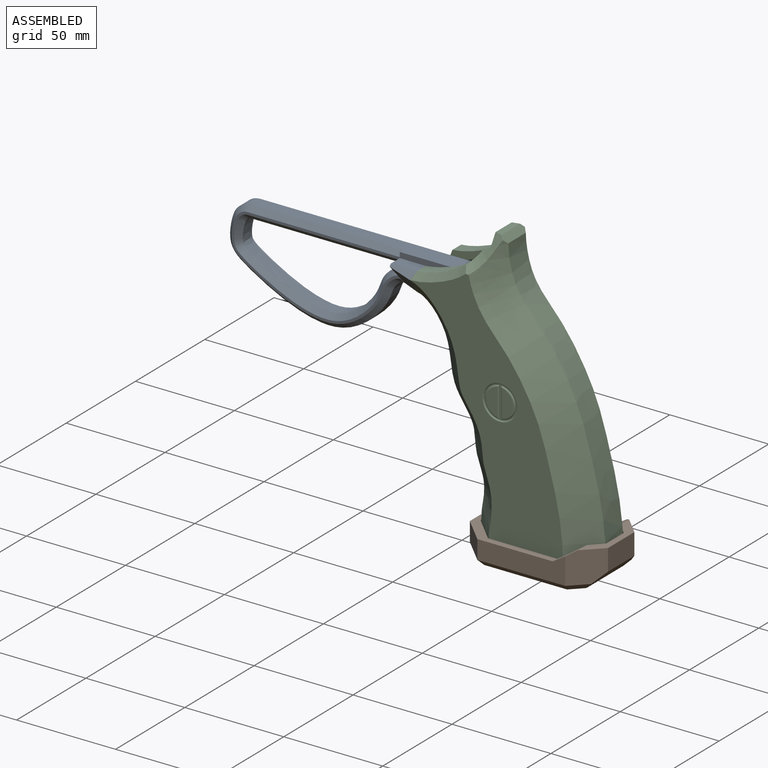
[diagram: assembled view]
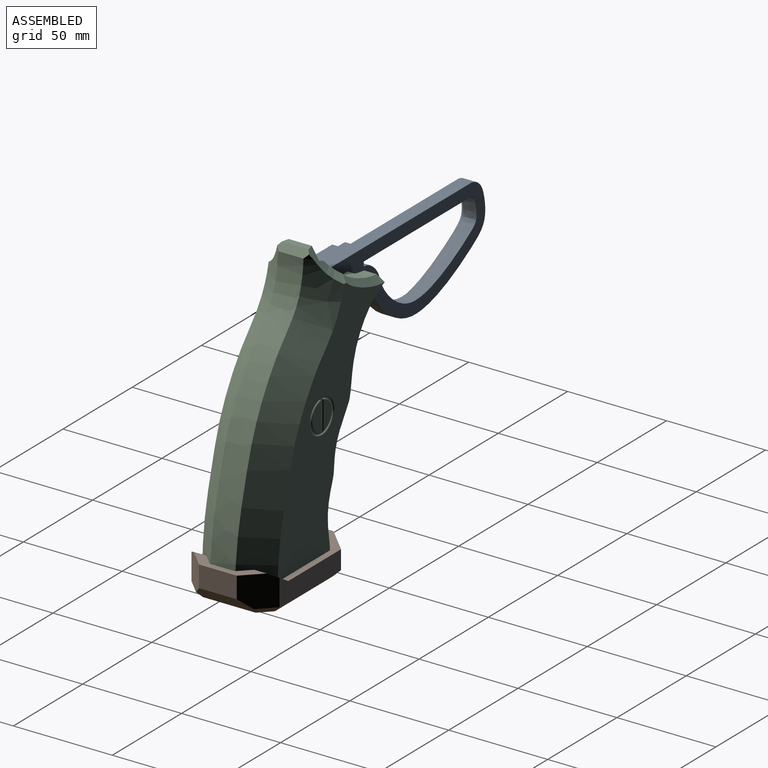
[diagram: assembled view, second angle]
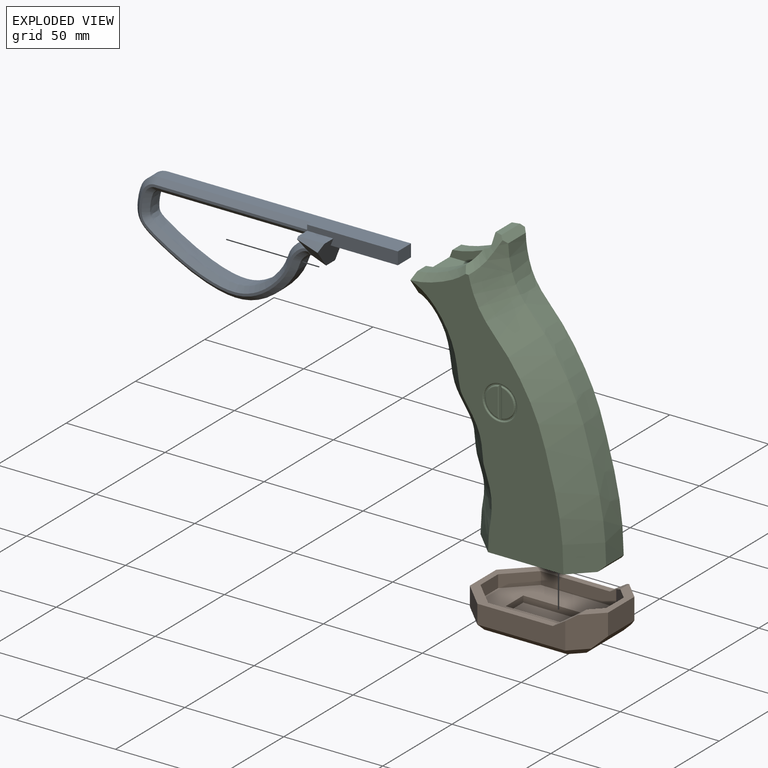
[diagram: exploded view]
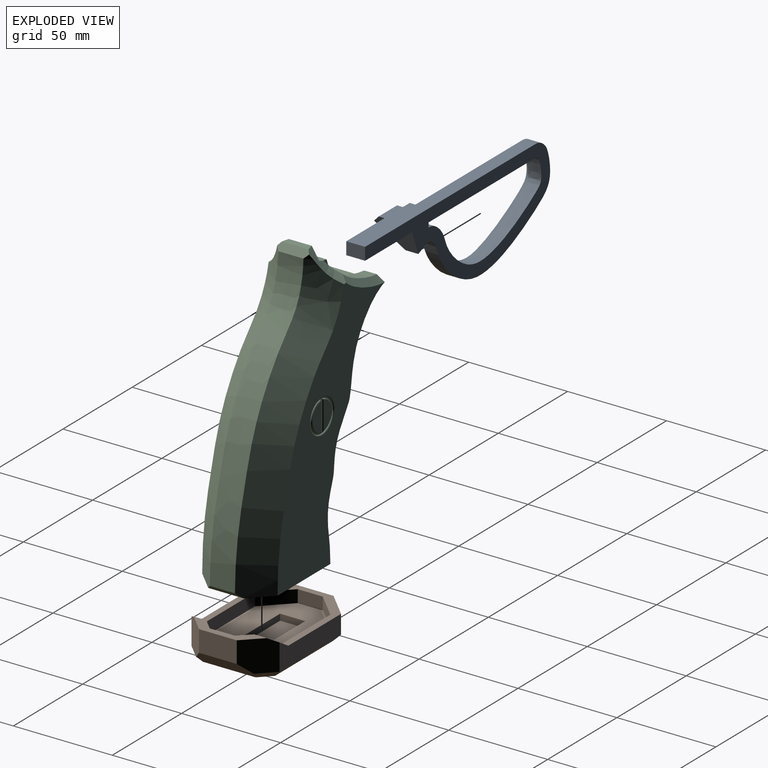
[diagram: exploded view, second angle]
ASSEMBLY  parts=3 mates=2
PART A: 20 faces, bbox 20x135.5x46.6 mm
  f0: plane 45.83x6.35mm, normal (1,0,0), area 246.7mm2, adj f1,f5,f6,f9,f10,f13
  f1: plane 122.03x9.53mm, normal (0,0,1), area 944.6mm2, adj f0,f3,f5,f10,f11,f18
  f2: plane 77.19x6.67mm, normal (0,0,-1), area 514.7mm2, adj f4,f5,f11,f16
  f3: extruded ~87.65x44.51mm, area 895.4mm2, adj f1,f8,f11,f17
  f4: extruded ~81.34x31.86mm, area 751.1mm2, adj f2,f5,f11,f15
  f5: plane 16.94x12.11mm, normal (0,-1,0), area 71.3mm2, adj f0,f1,f2,f4,f7,f11,f12,f13
  f6: plane 19.16x15.12mm, normal (0,0.93,-0.36), area 187.8mm2, adj f0,f7,f8,f9,f11,f12,f13
  f7: plane 13.24x3.24mm, normal (0.71,0,0.71), area 38.8mm2, adj f5,f6,f12,f13
  f8: plane 7.42x6.67mm, normal (0,-0.36,-0.93), area 51.1mm2, adj f3,f6,f11,f12,f17,f19
  f9: plane 33.95x9.53mm, normal (0,0,-1), area 323.4mm2, adj f0,f6,f10,f11
  f10: plane 9.53x6.35mm, normal (0,1,0), area 60.5mm2, adj f0,f1,f9,f11
  f11: plane 134.71x45.82mm, normal (-1,0,0), area 1664.9mm2, adj f1,f2,f3,f4,f5,f6,f8,f9
  f12: plane 14.12x12.74mm, normal (0.71,-0.25,-0.66), area 165.9mm2, adj f5,f6,f7,f8,f14,f19
  f13: plane 13.24x6.4mm, normal (0,0,1), area 84.8mm2, adj f0,f5,f6,f7
  f14: plane 86.34x40.83mm, normal (1,0,0), area 213.2mm2, adj f5,f12,f15,f16,f17,f18,f19
  f15: bspline ~84.2x37.1mm, area 422mm2, adj f4,f5,f14,f16
  f16: plane 77.3x2.54mm, normal (0.71,0,-0.71), area 277.5mm2, adj f2,f5,f14,f15
  f17: bspline ~89.88x44.78mm, area 468.4mm2, adj f3,f8,f14,f18,f19
  f18: plane 76.26x2.54mm, normal (0.71,0,0.71), area 273.8mm2, adj f1,f5,f14,f17
  f19: plane 2.99x2.79mm, normal (0.58,0.61,-0.54), area 1mm2, adj f8,f12,f14,f17
PART B: 35 faces, bbox 69.9x44.5x19.1 mm
  f0: plane 63.5x38.1mm, normal (0,0,1), area 1612.9mm2, adj f1,f2,f3,f4,f6,f7,f8,f9
  f1: plane 38.1x3.18mm, normal (0,-1,0), area 121mm2, adj f0,f2,f4,f5
  f2: plane 12.7x3.18mm, normal (1,0,0), area 40.3mm2, adj f0,f1,f3,f5
  f3: plane 38.1x3.18mm, normal (0,1,0), area 121mm2, adj f0,f2,f4,f5
  f4: plane 12.7x3.18mm, normal (-1,0,0), area 40.3mm2, adj f0,f1,f3,f5
  f5: plane 38.1x12.7mm, normal (0,0,1), area 483.9mm2, adj f1,f2,f3,f4
  f6: plane 12.7x12.7mm, normal (-1,0,0), area 161.3mm2, adj f0,f16,f19,f20
  f7: plane 38.1x8.33mm, normal (0,-1,0), area 245.1mm2, adj f0,f14,f17,f20,f22
  f8: plane 12.7x6.35mm, normal (1,0,0), area 80.6mm2, adj f0,f14,f21,f22
  f9: plane 38.1x8.33mm, normal (0,1,0), area 245.1mm2, adj f0,f14,f18,f19,f21
  f10: plane 44.45x13.49mm, normal (0,-1,0), area 436mm2, adj f14,f18,f25,f26,f28
  f11: plane 19.05x10.8mm, normal (1,0,0), area 205.6mm2, adj f16,f24,f25,f34
  f12: plane 44.45x13.49mm, normal (0,1,0), area 436mm2, adj f14,f17,f23,f24,f32
  f13: plane 19.05x9.53mm, normal (-1,0,0), area 181.5mm2, adj f14,f23,f26,f31
  f14: plane 50.8x44.45mm, normal (0,0,1), area 443.5mm2, adj f7,f8,f9,f10,f12,f13,f17,f18
  f15: plane 58.42x38.1mm, normal (0,0,-1), area 2075.1mm2, adj f27,f28,f29,f30,f31,f32,f33,f34
  f16: plane 36.83x8.89mm, normal (0,0,1), area 143.1mm2, adj f6,f11,f17,f18,f19,f20,f24,f25
  f17: plane 10.16x10.16mm, normal (-0.53,0,0.85), area 58.2mm2, adj f7,f12,f14,f16,f20,f24
  f18: plane 10.16x10.16mm, normal (-0.53,0,0.85), area 58.2mm2, adj f9,f10,f14,f16,f19,f25
  f19: plane 12.7x12.7mm, normal (-0.71,0.71,0), area 206.5mm2, adj f0,f6,f9,f16,f18
  f20: plane 12.7x12.7mm, normal (-0.71,-0.71,0), area 206.5mm2, adj f0,f6,f7,f16,f17
  f21: plane 12.7x12.7mm, normal (0.71,0.71,0), area 114mm2, adj f0,f8,f9,f14
  f22: plane 12.7x12.7mm, normal (0.71,-0.71,0), area 114mm2, adj f0,f7,f8,f14
  f23: plane 12.7x12.7mm, normal (-0.71,0.71,0), area 171.1mm2, adj f12,f13,f14,f33
  f24: plane 15.88x12.7mm, normal (0.71,0.71,0), area 260.5mm2, adj f11,f12,f16,f17,f30,f34
  f25: plane 15.88x12.7mm, normal (0.71,-0.71,0), area 260.5mm2, adj f10,f11,f16,f18,f27,f34
  f26: plane 12.7x12.7mm, normal (-0.71,-0.71,0), area 171.1mm2, adj f10,f13,f14,f29
  f27: plane 8.94x8.94mm, normal (0.5,-0.5,-0.71), area 42.5mm2, adj f15,f25,f28,f34
  f28: plane 44.45x3.18mm, normal (0,-0.71,-0.71), area 193.7mm2, adj f10,f15,f27,f29
  f29: plane 14.02x14.02mm, normal (-0.5,-0.5,-0.71), area 74.7mm2, adj f15,f26,f28,f31
  f30: plane 8.94x8.94mm, normal (0.5,0.5,-0.71), area 42.5mm2, adj f15,f24,f32,f34
  f31: plane 19.05x3.18mm, normal (-0.71,0,-0.71), area 79.6mm2, adj f13,f15,f29,f33
  f32: plane 44.45x3.18mm, normal (0,0.71,-0.71), area 193.7mm2, adj f12,f15,f30,f33
  f33: plane 14.02x14.02mm, normal (-0.5,0.5,-0.71), area 74.7mm2, adj f15,f23,f31,f32
  f34: plane 29.21x8.26mm, normal (0.71,0,-0.71), area 298.6mm2, adj f11,f15,f24,f25,f27,f30
PART C: 44 faces, bbox 96.5x41.4x146.9 mm
  f0: plane 38.11x15.14mm, normal (-0.93,0,0.36), area 372.2mm2, adj f2,f3,f4,f9,f10,f13,f14,f15
  f1: plane 13.53x3.63mm, normal (0,0,1), area 45mm2, adj f16,f19,f20,f21
  f2: extruded ~29.2x15.61mm, area 194.8mm2, adj f0,f14,f18,f20
  f3: extruded ~29.2x15.61mm, area 194.9mm2, adj f0,f15,f17,f19
  f4: extruded ~101.84x33.05mm, area 1417.9mm2, adj f0,f5,f9,f10
  f5: plane 60.95x38.1mm, normal (0,0,-1), area 1573.9mm2, adj f4,f7,f8,f9,f10,f11,f12,f22
  f6: extruded ~133.98x49.47mm, area 1855.8mm2, adj f11,f12,f21,f43
  f7: plane 126.11x79.17mm, normal (0,-1,0), area 3830.8mm2, adj f5,f10,f12,f17,f19,f34
  f8: plane 126.11x79.17mm, normal (0,1,0), area 3832.2mm2, adj f5,f9,f11,f18,f20,f40
  f9: bspline ~118.13x45.8mm, area 2100.8mm2, adj f0,f4,f5,f8,f18
  f10: bspline ~118.13x45.8mm, area 2136.8mm2, adj f0,f4,f5,f7,f17
  f11: bspline ~138.88x62.18mm, area 2560.7mm2, adj f5,f6,f8,f20,f21,f43
  f12: bspline ~138.88x62.18mm, area 2560.7mm2, adj f5,f6,f7,f19,f21,f43
  f13: plane 33.95x19.05mm, normal (0,0,1), area 646.8mm2, adj f0,f14,f15,f16
  f14: plane 34.17x20.64mm, normal (0,-1,0), area 311.9mm2, adj f0,f2,f13,f16,f20
  f15: plane 34.17x20.64mm, normal (0,1,0), area 311.9mm2, adj f0,f3,f13,f16,f19
  f16: plane 26.8x19.58mm, normal (-1,0,0), area 478.3mm2, adj f1,f13,f14,f15,f19,f20
  f17: bspline ~30.63x14.14mm, area 128.4mm2, adj f0,f3,f7,f10,f19
  f18: bspline ~30.63x14.14mm, area 128.3mm2, adj f0,f2,f8,f9,f20
  f19: bspline ~17.85x15.06mm, area 103mm2, adj f1,f3,f7,f12,f15,f16,f17,f21
  f20: bspline ~17.86x15.07mm, area 103mm2, adj f1,f2,f8,f11,f14,f16,f18,f21
  f21: plane 16.15x3.24mm, normal (0.7,0,0.71), area 65.1mm2, adj f1,f6,f11,f12,f19,f20
  f22: plane 38.09x3.18mm, normal (0,-1,0), area 120.9mm2, adj f5,f23,f25,f26
  f23: plane 12.7x3.18mm, normal (-1,0,0), area 40.3mm2, adj f5,f22,f24,f26
  f24: plane 38.09x3.18mm, normal (0,1,0), area 120.9mm2, adj f5,f23,f25,f26
  f25: plane 12.7x3.18mm, normal (1,0,0), area 40.3mm2, adj f5,f22,f24,f26
  f26: plane 38.09x12.7mm, normal (0,0,-1), area 483.8mm2, adj f22,f23,f24,f25
  f27: plane 16.51x16.51mm, normal (0,-1,0), area 47.1mm2, adj f30,f31,f32,f33,f34
  f28: plane 13.78x5.84mm, normal (0,-1,0), area 60.7mm2, adj f32,f33
  f29: plane 13.78x5.84mm, normal (0,-1,0), area 60.7mm2, adj f30,f31
  f30: torus R=6.99mm, axis (0,-1,0), area 21.5mm2, adj f27,f29,f31
  f31: cylinder r=0.64mm len=15.21mm, axis (0,0,-1), area 14.5mm2, adj f27,f29,f30
  f32: cylinder r=0.64mm len=15.21mm, axis (0,0,1), area 14.5mm2, adj f27,f28,f33
  f33: torus R=6.99mm, axis (0,-1,0), area 21.5mm2, adj f27,f28,f32
  f34: torus R=8.89mm, axis (0,-1,0), area 53.2mm2, adj f7,f27
  f35: plane 16.51x16.51mm, normal (0,1,0), area 47.1mm2, adj f38,f39,f40,f41,f42
  f36: plane 13.78x5.84mm, normal (0,1,0), area 60.7mm2, adj f41,f42
  f37: plane 13.78x5.84mm, normal (0,1,0), area 60.7mm2, adj f38,f39
  f38: torus R=6.99mm, axis (0,-1,0), area 21.5mm2, adj f35,f37,f39
  f39: cylinder r=0.64mm len=15.21mm, axis (0,0,1), area 14.5mm2, adj f35,f37,f38
  f40: torus R=8.89mm, axis (0,-1,0), area 53.2mm2, adj f8,f35
  f41: cylinder r=0.64mm len=15.21mm, axis (0,0,-1), area 14.5mm2, adj f35,f36,f42
  f42: torus R=6.99mm, axis (0,-1,0), area 21.5mm2, adj f35,f36,f41
  f43: plane 17.83x2.59mm, normal (0.71,0,-0.7), area 55mm2, adj f5,f6,f11,f12
PLACE A rot(axis=(0,0,-1),90deg) t=(-41.65,-3.87,54.11)mm
PLACE B t=(-21.84,0.53,-46.14)mm
PLACE C t=(-39.01,-3.87,7.61)mm
MATE fastened A.f10 <-> C.f16  axis (1,0,0) through (-41.19,-3.87,67.29)mm
MATE fastened B.f5 <-> C.f26  axis (0,0,1) through (-16.69,-3.87,-49.32)mm
